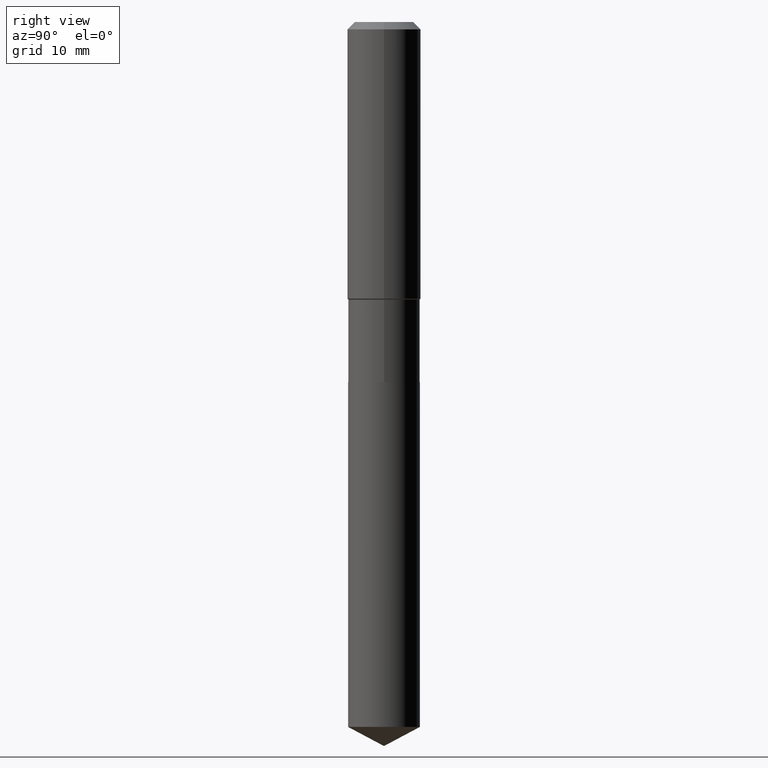
[diagram: clean part render]
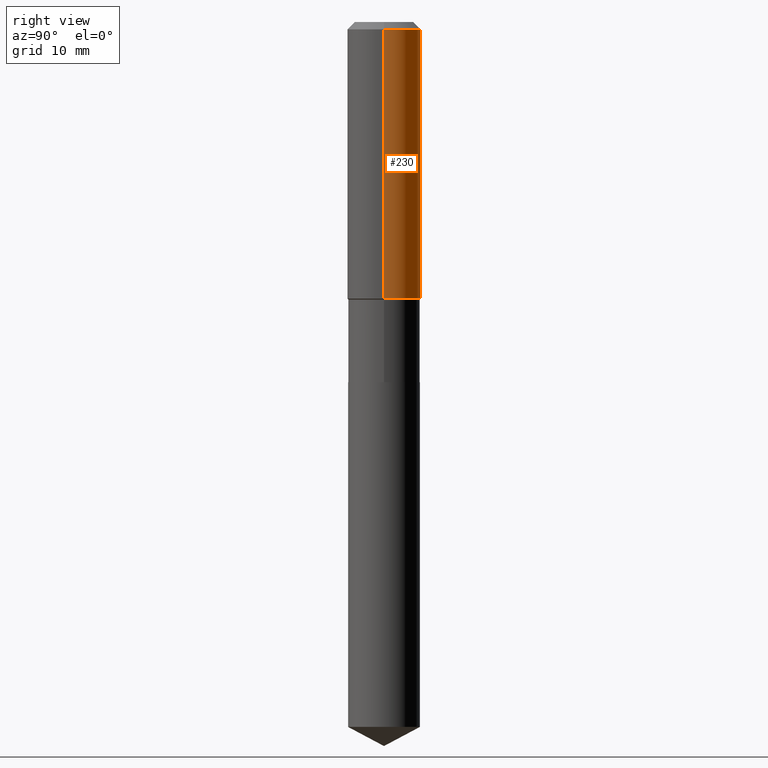
[diagram: same view with one face highlighted and labeled with its STEP entity id]
A machine part, right view. The second image highlights one B-rep face of the part: STEP entity #230.
In plain terms, the highlighted cylindrical surface (partial cylindrical patch) has radius 5.9995 mm, axis along (-0, 0, 1).
Its self-contained STEP definition (entity closure, byte-faithful):
#8 = EDGE_CURVE ( 'NONE', #96, #405, #9, .T. ) ;
#9 = CIRCLE ( 'NONE', #256, 0.2361999999999999933 ) ;
#18 = EDGE_LOOP ( 'NONE', ( #277, #347, #66, #156 ) ) ;
#20 = CARTESIAN_POINT ( 'NONE',  ( -0.2361999999999999933, -1.503554831849177787E-15, -0.04724000000000028177 ) ) ;
#52 = DIRECTION ( 'NONE',  ( -2.445468806185136597E-29, 3.491481338843145583E-15, 1.000000000000000000 ) ) ;
#66 = ORIENTED_EDGE ( 'NONE', *, *, #8, .F. ) ;
#76 = LINE ( 'NONE', #236, #205 ) ;
#82 = VECTOR ( 'NONE', #320, 39.37007874015748143 ) ;
#96 = VERTEX_POINT ( 'NONE', #457 ) ;
#155 = CARTESIAN_POINT ( 'NONE',  ( 0.2362000000000001043, -1.649375784469496920E-15, 1.151752954443000508E-29 ) ) ;
#156 = ORIENTED_EDGE ( 'NONE', *, *, #416, .F. ) ;
#169 = AXIS2_PLACEMENT_3D ( 'NONE', #443, #185, #436 ) ;
#172 = CARTESIAN_POINT ( 'NONE',  ( 1.155239464041865506E-30, -1.649375784469511859E-16, -0.04724000000000028177 ) ) ;
#180 = CYLINDRICAL_SURFACE ( 'NONE', #279, 0.2362000000000001043 ) ;
#185 = DIRECTION ( 'NONE',  ( -2.445468806185136597E-29, 3.491481338843145583E-15, 1.000000000000000000 ) ) ;
#205 = VECTOR ( 'NONE', #280, 39.37007874015748143 ) ;
#230 = ADVANCED_FACE ( 'NONE', ( #303 ), #180, .T. ) ;
#236 = CARTESIAN_POINT ( 'NONE',  ( -0.2362000000000001043, 1.678301941865357380E-15, -1.161852468318209317E-29 ) ) ;
#252 = EDGE_CURVE ( 'NONE', #349, #272, #389, .T. ) ;
#256 = AXIS2_PLACEMENT_3D ( 'NONE', #172, #52, #355 ) ;
#258 = CARTESIAN_POINT ( 'NONE',  ( -0.2362000000000002153, -4.520474027116760658E-15, -1.775399999999999645 ) ) ;
#261 = CARTESIAN_POINT ( 'NONE',  ( 0.000000000000000000, 0.000000000000000000, 0.000000000000000000 ) ) ;
#272 = VERTEX_POINT ( 'NONE', #258 ) ;
#274 = LINE ( 'NONE', #155, #82 ) ;
#277 = ORIENTED_EDGE ( 'NONE', *, *, #252, .T. ) ;
#279 = AXIS2_PLACEMENT_3D ( 'NONE', #261, #329, #300 ) ;
#280 = DIRECTION ( 'NONE',  ( -2.445468806185136877E-29, 3.491481338843145188E-15, 1.000000000000000000 ) ) ;
#300 = DIRECTION ( 'NONE',  ( 1.000000000000000000, -6.982962677686266711E-15, 4.876176775795935793E-29 ) ) ;
#303 = FACE_OUTER_BOUND ( 'NONE', #18, .T. ) ;
#320 = DIRECTION ( 'NONE',  ( -2.445468806185136877E-29, 3.491481338843145188E-15, 1.000000000000000000 ) ) ;
#329 = DIRECTION ( 'NONE',  ( -2.445468806185136597E-29, 3.491481338843145583E-15, 1.000000000000000000 ) ) ;
#347 = ORIENTED_EDGE ( 'NONE', *, *, #411, .T. ) ;
#349 = VERTEX_POINT ( 'NONE', #372 ) ;
#355 = DIRECTION ( 'NONE',  ( 1.000000000000000000, -6.982962677686266711E-15, 0.000000000000000000 ) ) ;
#372 = CARTESIAN_POINT ( 'NONE',  ( 0.2362000000000002153, -7.848151753451617522E-15, -1.775399999999999645 ) ) ;
#389 = CIRCLE ( 'NONE', #169, 0.2362000000000002153 ) ;
#405 = VERTEX_POINT ( 'NONE', #20 ) ;
#411 = EDGE_CURVE ( 'NONE', #272, #405, #76, .T. ) ;
#416 = EDGE_CURVE ( 'NONE', #349, #96, #274, .T. ) ;
#436 = DIRECTION ( 'NONE',  ( 1.000000000000000000, -6.982962677686266711E-15, 0.000000000000000000 ) ) ;
#443 = CARTESIAN_POINT ( 'NONE',  ( 4.341685318501090243E-29, -6.198775968982119419E-15, -1.775399999999999645 ) ) ;
#457 = CARTESIAN_POINT ( 'NONE',  ( 0.2361999999999999933, -1.814313362916447440E-15, -0.04724000000000028177 ) ) ;